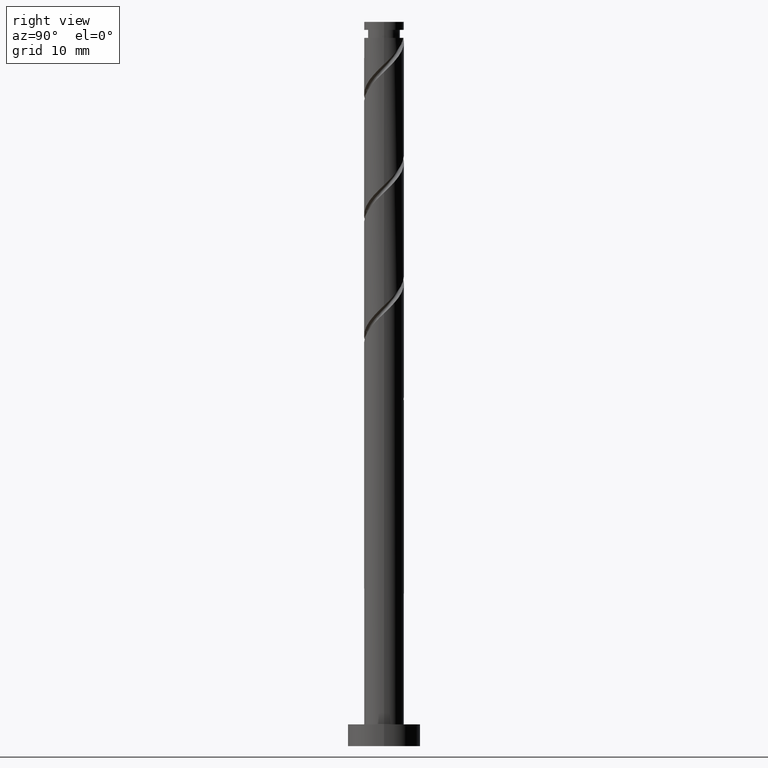
[diagram: clean part render]
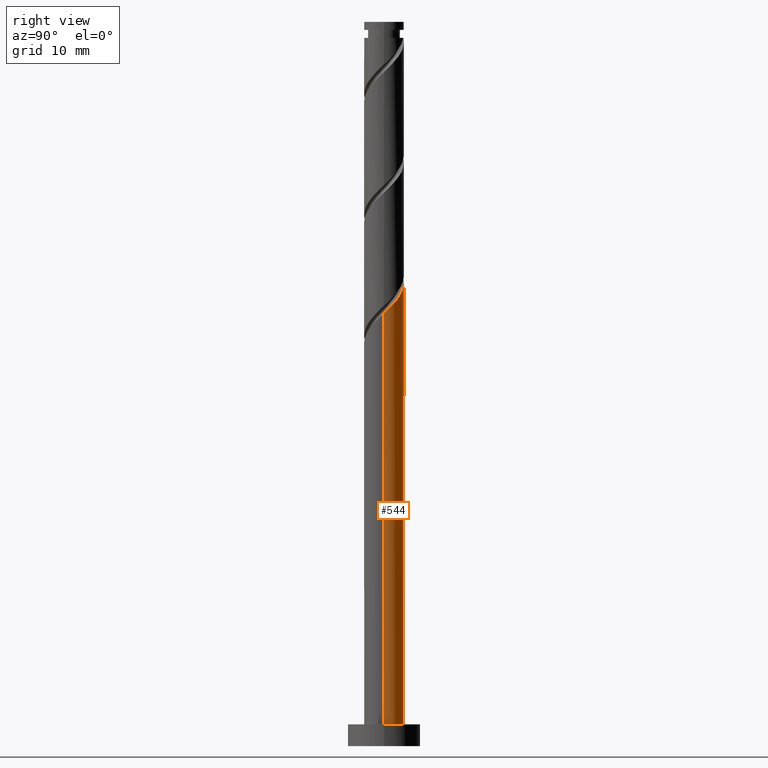
[diagram: same view with one face highlighted and labeled with its STEP entity id]
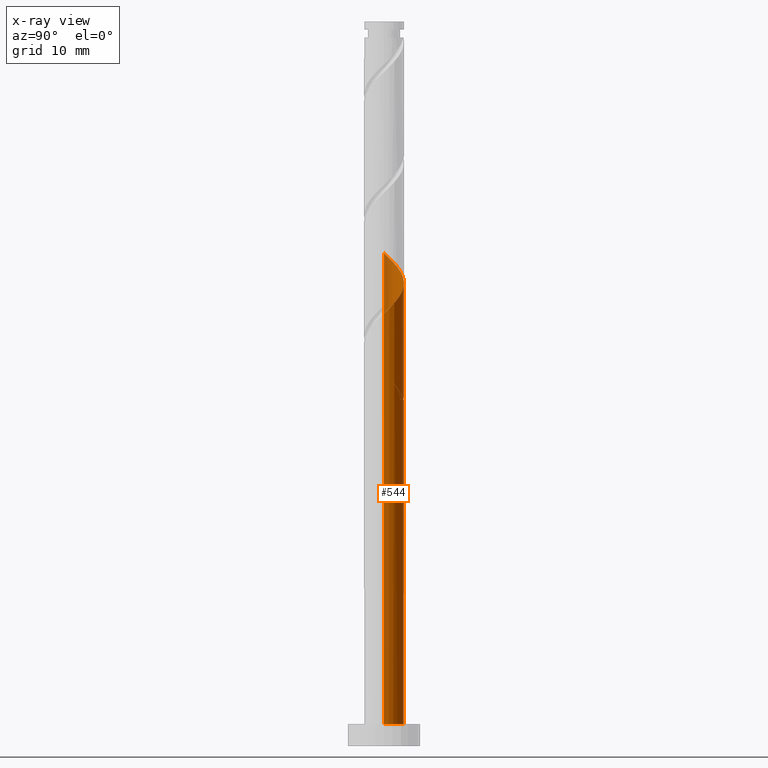
[diagram: x-ray of the same camera — body ghosted, the highlighted face saturated]
A machine part, right view. The second image highlights one B-rep face of the part: STEP entity #544.
The next image is the same camera in x-ray: the body ghosted, the highlighted face saturated — about 0% of this face is hidden behind the body in this view.
In plain terms, the highlighted cylindrical surface (edge-blend (fillet) strip) has radius 2.75 mm, axis along (-0, -0, -1).
Its self-contained STEP definition (entity closure, byte-faithful):
#19 = CARTESIAN_POINT ( 'NONE',  ( -1.313100079662427699, 2.416250852206890176, 49.63865948722565946 ) ) ;
#23 = ORIENTED_EDGE ( 'NONE', *, *, #863, .F. ) ;
#68 = CARTESIAN_POINT ( 'NONE',  ( -1.022444303417954892, 2.598506278154679716, 64.91643726500345224 ) ) ;
#70 = ORIENTED_EDGE ( 'NONE', *, *, #1473, .F. ) ;
#75 = CARTESIAN_POINT ( 'NONE',  ( -2.750000000000003553, 0.4483995225062596957, 50.99269990135276487 ) ) ;
#79 = AXIS2_PLACEMENT_3D ( 'NONE', #1071, #843, #734 ) ;
#83 =( BOUNDED_CURVE ( )  B_SPLINE_CURVE ( 2, ( #389, #397, #1070, #833, #1302, #883, #651, #75, #320 ),
 .UNSPECIFIED., .F., .T. ) 
 B_SPLINE_CURVE_WITH_KNOTS ( ( 3, 2, 2, 2, 3 ),
 ( 0.000000000000000000, 0.01388888888888883955, 0.02777777777777779011, 0.04166666666666662966, 0.05452480538552900019 ),
 .UNSPECIFIED. ) 
 CURVE ( )  GEOMETRIC_REPRESENTATION_ITEM ( )  RATIONAL_B_SPLINE_CURVE ( ( 0.9090909090909156109, 0.8952797754656500739, 0.9090909090909156109, 0.8952797754656500739, 0.9090909090909156109, 0.8952797754656500739, 0.9090909090909156109, 0.8963047551055902673, 0.9071930855141278061 ) ) 
 REPRESENTATION_ITEM ( '' )  );
#87 = EDGE_CURVE ( 'NONE', #1047, #273, #373, .T. ) ;
#100 = CIRCLE ( 'NONE', #1057, 2.750000000000000000 ) ;
#148 = CARTESIAN_POINT ( 'NONE',  ( -2.151525136548022132, 1.712728696204404377, 66.30532615389232376 ) ) ;
#159 = CARTESIAN_POINT ( 'NONE',  ( -2.607560008403386309, 0.8735735816606149395, 67.23125207981824758 ) ) ;
#197 = VERTEX_POINT ( 'NONE', #561 ) ;
#211 = EDGE_CURVE ( 'NONE', #819, #718, #100, .T. ) ;
#262 = CARTESIAN_POINT ( 'NONE',  ( 2.749084659758184834, 0.07094739940441256720, 59.82384467241085702 ) ) ;
#271 = CARTESIAN_POINT ( 'NONE',  ( 0.4075039924296049998, 2.719639773233572644, 63.52754837611454519 ) ) ;
#273 = VERTEX_POINT ( 'NONE', #319 ) ;
#297 = CARTESIAN_POINT ( 'NONE',  ( 0.8870498622585347714, 2.647785824621814665, 63.06458541315159039 ) ) ;
#319 = CARTESIAN_POINT ( 'NONE',  ( 2.750000000000000000, 3.367778697655220519E-16, 3.000000000000000000 ) ) ;
#320 = CARTESIAN_POINT ( 'NONE',  ( -2.750000000000003997, 2.296866106584901725E-15, 51.42261941371837253 ) ) ;
#324 = DIRECTION ( 'NONE',  ( 0.000000000000000000, 1.000000000000000000, -7.569702440626067895E-15 ) ) ;
#327 = DIRECTION ( 'NONE',  ( 0.000000000000000000, 0.000000000000000000, 1.000000000000000000 ) ) ;
#330 = EDGE_LOOP ( 'NONE', ( #70, #443, #1084, #827, #1040, #481, #23, #993 ) ) ;
#344 = VERTEX_POINT ( 'NONE', #594 ) ;
#349 = CARTESIAN_POINT ( 'NONE',  ( -0.5472430904086403869, 2.695000000000004281, 47.78680763537381182 ) ) ;
#366 = CARTESIAN_POINT ( 'NONE',  ( -2.750000000000000000, 0.000000000000000000, 100.0000000000000000 ) ) ;
#373 = LINE ( 'NONE', #388, #961 ) ;
#384 = CARTESIAN_POINT ( 'NONE',  ( -0.07204187739932711720, 2.791493721845329290, 63.99051133907751421 ) ) ;
#388 = CARTESIAN_POINT ( 'NONE',  ( 2.750000000000000000, 3.367778697655220519E-16, 100.0000000000000000 ) ) ;
#389 = CARTESIAN_POINT ( 'NONE',  ( -0.5472430904086402759, 2.695000000000004281, 47.78680763537381182 ) ) ;
#397 = CARTESIAN_POINT ( 'NONE',  ( -1.022444303417954892, 2.598506278154679716, 48.24977059833677373 ) ) ;
#401 = CARTESIAN_POINT ( 'NONE',  ( -2.453525416322490660, 1.333356764958523621, 66.76828911685531409 ) ) ;
#403 = FACE_OUTER_BOUND ( 'NONE', #330, .T. ) ;
#407 = CARTESIAN_POINT ( 'NONE',  ( 2.559029128977626133, 1.006911077029167378, 60.74977059833678794 ) ) ;
#417 = AXIS2_PLACEMENT_3D ( 'NONE', #776, #327, #1243 ) ;
#442 = CIRCLE ( 'NONE', #417, 2.750000000000000000 ) ;
#443 = ORIENTED_EDGE ( 'NONE', *, *, #87, .T. ) ;
#481 = ORIENTED_EDGE ( 'NONE', *, *, #211, .T. ) ;
#485 = LINE ( 'NONE', #366, #1176 ) ;
#516 = CARTESIAN_POINT ( 'NONE',  ( 1.313100079662431030, 2.416250852206893729, 62.60162245018862848 ) ) ;
#520 = CARTESIAN_POINT ( 'NONE',  ( 2.750000000000003553, -2.285661881674731789E-15, 59.75595274705172955 ) ) ;
#525 = LINE ( 'NONE', #952, #882 ) ;
#528 = CARTESIAN_POINT ( 'NONE',  ( -2.750000000000003997, 2.296866106584901725E-15, 68.08928608038506525 ) ) ;
#530 = CYLINDRICAL_SURFACE ( 'NONE', #79, 2.750000000000000000 ) ;
#544 = ADVANCED_FACE ( 'NONE', ( #403 ), #530, .T. ) ;
#561 = CARTESIAN_POINT ( 'NONE',  ( -2.750000000000000000, 0.000000000000000000, 3.000000000000000000 ) ) ;
#569 = EDGE_CURVE ( 'NONE', #344, #197, #525, .T. ) ;
#574 = CARTESIAN_POINT ( 'NONE',  ( -0.8870498622585309967, 2.647785824621811113, 49.17569652426267623 ) ) ;
#592 = CARTESIAN_POINT ( 'NONE',  ( -2.736574719032083269, 0.5556851971715306426, 51.95347430204046191 ) ) ;
#594 = CARTESIAN_POINT ( 'NONE',  ( -2.750000000000003997, 2.296866106584901725E-15, 51.42261941371837253 ) ) ;
#614 = CARTESIAN_POINT ( 'NONE',  ( -2.750000000000003997, 2.296866106584901725E-15, 68.08928608038506525 ) ) ;
#623 = DIRECTION ( 'NONE',  ( -0.000000000000000000, -0.000000000000000000, -1.000000000000000000 ) ) ;
#631 = CARTESIAN_POINT ( 'NONE',  ( 2.381483538923164556, 1.458136956886804780, 61.21273356129974275 ) ) ;
#651 = CARTESIAN_POINT ( 'NONE',  ( -2.607560008403386309, 0.8735735816606149395, 50.56458541315159749 ) ) ;
#660 = DIRECTION ( 'NONE',  ( -1.400676323190717382E-30, -6.308085367188394383E-15, -1.000000000000000000 ) ) ;
#669 = CARTESIAN_POINT ( 'NONE',  ( -2.750000000000000000, -1.561122004150399810E-15, 52.48432919036256550 ) ) ;
#685 = EDGE_CURVE ( 'NONE', #273, #197, #442, .T. ) ;
#691 = CARTESIAN_POINT ( 'NONE',  ( -2.749084659758180393, 0.07094739940441290027, 52.41643726500343803 ) ) ;
#707 = CARTESIAN_POINT ( 'NONE',  ( 2.750000000000003553, -2.285661881674731789E-15, 59.75595274705172955 ) ) ;
#716 = CARTESIAN_POINT ( 'NONE',  ( -1.849524856773553827, 2.092100627450284467, 65.84236319092936185 ) ) ;
#718 = VERTEX_POINT ( 'NONE', #858 ) ;
#734 = DIRECTION ( 'NONE',  ( -1.000000000000000000, 0.000000000000000000, 0.000000000000000000 ) ) ;
#744 =( BOUNDED_CURVE ( )  B_SPLINE_CURVE ( 2, ( #669, #1132, #691, #592, #1140, #1042, #816, #907, #19, #574, #1151, #1052, #792 ),
 .UNSPECIFIED., .F., .T. ) 
 B_SPLINE_CURVE_WITH_KNOTS ( ( 3, 2, 2, 2, 2, 2, 3 ),
 ( 0.9295248053855290626, 0.9305555555555555802, 0.9444444444444444198, 0.9583333333333333703, 0.9722222222222222099, 0.9861111111111111605, 1.000000000000000000 ),
 .UNSPECIFIED. ) 
 CURVE ( )  GEOMETRIC_REPRESENTATION_ITEM ( )  RATIONAL_B_SPLINE_CURVE ( ( 0.9071930855141213668, 0.9080659294509689783, 0.9090909090909090606, 0.8952797754656436346, 0.9090909090909090606, 0.8952797754656436346, 0.9090909090909090606, 0.8952797754656436346, 0.9090909090909090606, 0.8952797754656436346, 0.9090909090909090606, 0.8952797754656436346, 0.9090909090909090606 ) ) 
 REPRESENTATION_ITEM ( '' )  );
#776 = CARTESIAN_POINT ( 'NONE',  ( 0.000000000000000000, 0.000000000000000000, 3.000000000000000000 ) ) ;
#779 = EDGE_CURVE ( 'NONE', #1101, #1016, #485, .T. ) ;
#792 = CARTESIAN_POINT ( 'NONE',  ( 0.5472430904086413861, 2.695000000000000284, 47.78680763537381182 ) ) ;
#816 = CARTESIAN_POINT ( 'NONE',  ( -2.060316917994741370, 1.821426418339387121, 50.56458541315159039 ) ) ;
#819 = VERTEX_POINT ( 'NONE', #349 ) ;
#827 = ORIENTED_EDGE ( 'NONE', *, *, #569, .F. ) ;
#833 = CARTESIAN_POINT ( 'NONE',  ( -1.849524856773553827, 2.092100627450284467, 49.17569652426270466 ) ) ;
#839 = CARTESIAN_POINT ( 'NONE',  ( -1.435984580095754692, 2.345303452802482091, 65.37940022796641415 ) ) ;
#843 = DIRECTION ( 'NONE',  ( -0.000000000000000000, -0.000000000000000000, -1.000000000000000000 ) ) ;
#858 = CARTESIAN_POINT ( 'NONE',  ( 0.5472430904086413861, 2.695000000000000284, 47.78680763537381182 ) ) ;
#863 = EDGE_CURVE ( 'NONE', #1016, #718, #744, .T. ) ;
#882 = VECTOR ( 'NONE', #623, 1000.000000000000000 ) ;
#883 = CARTESIAN_POINT ( 'NONE',  ( -2.453525416322490660, 1.333356764958523621, 50.10162245018863558 ) ) ;
#907 = CARTESIAN_POINT ( 'NONE',  ( -1.739150297066324180, 2.184715879791969684, 50.10162245018861427 ) ) ;
#952 = CARTESIAN_POINT ( 'NONE',  ( -2.750000000000000000, 0.000000000000000000, 100.0000000000000000 ) ) ;
#961 = VECTOR ( 'NONE', #1425, 1000.000000000000000 ) ;
#971 = CARTESIAN_POINT ( 'NONE',  ( 2.060316917994744923, 1.821426418339390008, 61.67569652426270466 ) ) ;
#993 = ORIENTED_EDGE ( 'NONE', *, *, #779, .F. ) ;
#1016 = VERTEX_POINT ( 'NONE', #1060 ) ;
#1040 = ORIENTED_EDGE ( 'NONE', *, *, #1142, .F. ) ;
#1042 = CARTESIAN_POINT ( 'NONE',  ( -2.381483538923157894, 1.458136956886804336, 51.02754837611453098 ) ) ;
#1047 = VERTEX_POINT ( 'NONE', #520 ) ;
#1052 = CARTESIAN_POINT ( 'NONE',  ( 0.07204187739932761680, 2.791493721845324405, 48.24977059833675952 ) ) ;
#1057 = AXIS2_PLACEMENT_3D ( 'NONE', #1346, #660, #324 ) ;
#1060 = CARTESIAN_POINT ( 'NONE',  ( -2.750000000000000000, -1.561122004150399810E-15, 52.48432919036256550 ) ) ;
#1068 = CARTESIAN_POINT ( 'NONE',  ( -2.750000000000003997, 0.4483995225062594181, 67.65936656801945048 ) ) ;
#1070 = CARTESIAN_POINT ( 'NONE',  ( -1.435984580095754692, 2.345303452802482091, 48.71273356129975696 ) ) ;
#1071 = CARTESIAN_POINT ( 'NONE',  ( 0.000000000000000000, 0.000000000000000000, 100.0000000000000000 ) ) ;
#1084 = ORIENTED_EDGE ( 'NONE', *, *, #685, .T. ) ;
#1085 = CARTESIAN_POINT ( 'NONE',  ( 2.736574719032087266, 0.5556851971715304206, 60.28680763537381893 ) ) ;
#1101 = VERTEX_POINT ( 'NONE', #614 ) ;
#1132 = CARTESIAN_POINT ( 'NONE',  ( -2.750000000000000000, 0.03547960441305715584, 52.45031181643020801 ) ) ;
#1140 = CARTESIAN_POINT ( 'NONE',  ( -2.559029128977621248, 1.006911077029167600, 51.49051133907751421 ) ) ;
#1142 = EDGE_CURVE ( 'NONE', #819, #344, #83, .T. ) ;
#1151 = CARTESIAN_POINT ( 'NONE',  ( -0.4075039924296016136, 2.719639773233567759, 48.71273356129973564 ) ) ;
#1169 = CARTESIAN_POINT ( 'NONE',  ( 1.739150297066327955, 2.184715879791973236, 62.13865948722566657 ) ) ;
#1176 = VECTOR ( 'NONE', #1486, 1000.000000000000000 ) ;
#1179 = CARTESIAN_POINT ( 'NONE',  ( -0.5472430904086404979, 2.695000000000004281, 64.45347430204047612 ) ) ;
#1243 = DIRECTION ( 'NONE',  ( 1.000000000000000000, 0.000000000000000000, 0.000000000000000000 ) ) ;
#1289 = CARTESIAN_POINT ( 'NONE',  ( 2.750000000000003997, 0.03547960441305565010, 59.78997012098408703 ) ) ;
#1302 = CARTESIAN_POINT ( 'NONE',  ( -2.151525136548022132, 1.712728696204404377, 49.63865948722565946 ) ) ;
#1346 = CARTESIAN_POINT ( 'NONE',  ( 0.000000000000000000, 0.000000000000000000, 47.78680763537382603 ) ) ;
#1425 = DIRECTION ( 'NONE',  ( -0.000000000000000000, -0.000000000000000000, -1.000000000000000000 ) ) ;
#1473 = EDGE_CURVE ( 'NONE', #1047, #1101, #1483, .T. ) ;
#1483 =( BOUNDED_CURVE ( )  B_SPLINE_CURVE ( 2, ( #707, #1289, #262, #1085, #407, #631, #971, #1169, #516, #297, #271, #384, #1179, #68, #839, #716, #148, #401, #159, #1068, #528 ),
 .UNSPECIFIED., .F., .T. ) 
 B_SPLINE_CURVE_WITH_KNOTS ( ( 3, 2, 2, 2, 2, 2, 2, 2, 2, 2, 3 ),
 ( 0.1795248053855290349, 0.1805555555555555802, 0.1944444444444444198, 0.2083333333333333703, 0.2222222222222222099, 0.2361111111111111605, 0.2500000000000000000, 0.2638888888888888395, 0.2777777777777777901, 0.2916666666666666297, 0.3045248053855290071 ),
 .UNSPECIFIED. ) 
 CURVE ( )  GEOMETRIC_REPRESENTATION_ITEM ( )  RATIONAL_B_SPLINE_CURVE ( ( 0.9071930855141276950, 0.9080659294509754176, 0.9090909090909156109, 0.8952797754656500739, 0.9090909090909156109, 0.8952797754656500739, 0.9090909090909156109, 0.8952797754656500739, 0.9090909090909156109, 0.8952797754656500739, 0.9090909090909156109, 0.8952797754656500739, 0.9090909090909156109, 0.8952797754656500739, 0.9090909090909156109, 0.8952797754656500739, 0.9090909090909156109, 0.8952797754656500739, 0.9090909090909156109, 0.8963047551055902673, 0.9071930855141276950 ) ) 
 REPRESENTATION_ITEM ( '' )  );
#1486 = DIRECTION ( 'NONE',  ( -0.000000000000000000, -0.000000000000000000, -1.000000000000000000 ) ) ;